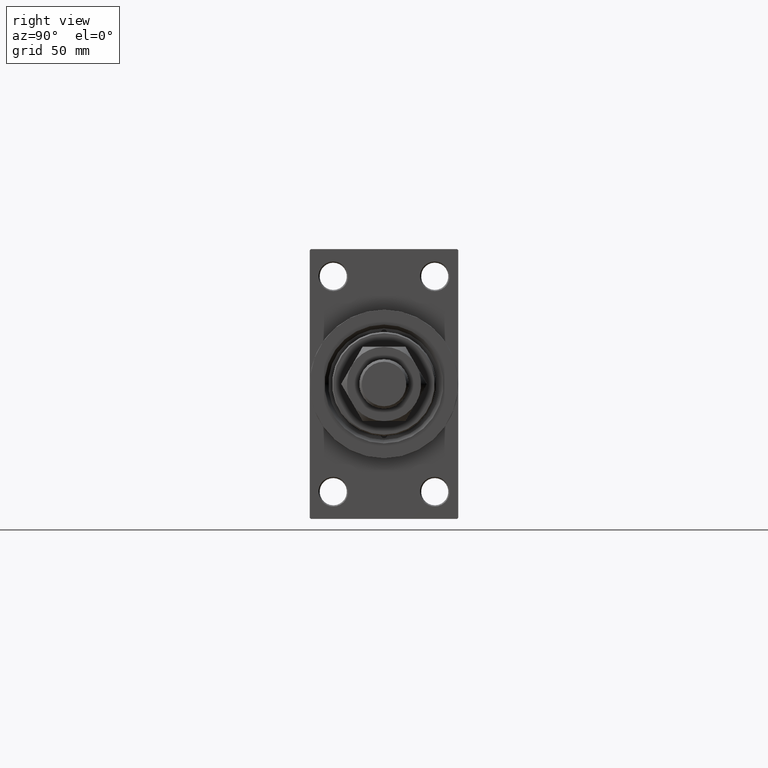
[diagram: clean part render]
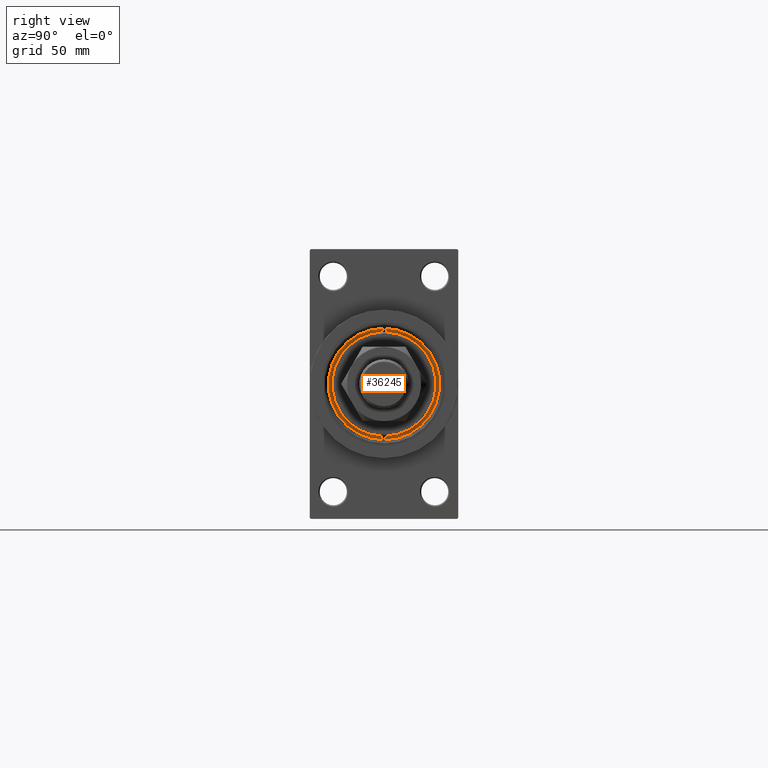
[diagram: same view with one face highlighted and labeled with its STEP entity id]
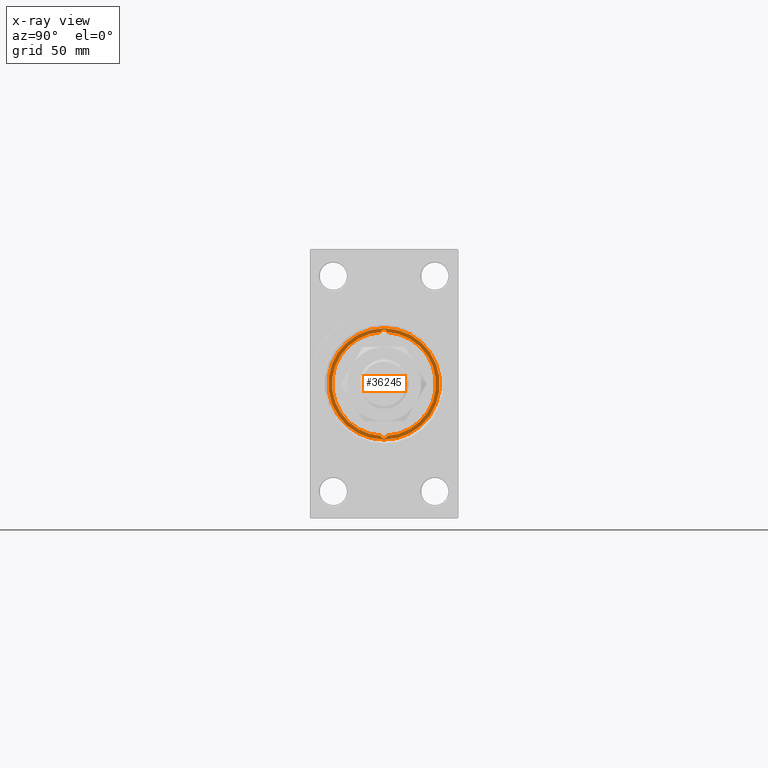
[diagram: x-ray of the same camera — body ghosted, the highlighted face saturated]
A machine part, right view. The second image highlights one B-rep face of the part: STEP entity #36245.
The next image is the same camera in x-ray: the body ghosted, the highlighted face saturated — about 0% of this face is hidden behind the body in this view.
In plain terms, the highlighted planar face has unit normal (1, -0, -0).
Its self-contained STEP definition (entity closure, byte-faithful):
#1746 = DIRECTION ( 'NONE',  ( -0.000000000000000000, -0.000000000000000000, 1.000000000000000000 ) ) ;
#2287 = AXIS2_PLACEMENT_3D ( 'NONE', #35805, #1746, #8982 ) ;
#2573 = CARTESIAN_POINT ( 'NONE',  ( 20.96385542168674831, -1.231570484631379969, 43.25999999999999801 ) ) ;
#5216 = DIRECTION ( 'NONE',  ( 1.000000000000000000, 0.000000000000000000, 0.000000000000000000 ) ) ;
#5654 = DIRECTION ( 'NONE',  ( 1.000000000000000000, 0.000000000000000000, 0.000000000000000000 ) ) ;
#5677 = CIRCLE ( 'NONE', #33448, 22.50000000000000355 ) ;
#6265 = DIRECTION ( 'NONE',  ( 1.000000000000000000, 0.000000000000000000, 0.000000000000000000 ) ) ;
#6508 = DIRECTION ( 'NONE',  ( -0.000000000000000000, -0.000000000000000000, 1.000000000000000000 ) ) ;
#6580 = ORIENTED_EDGE ( 'NONE', *, *, #42411, .F. ) ;
#7369 = ORIENTED_EDGE ( 'NONE', *, *, #19553, .F. ) ;
#7836 = EDGE_CURVE ( 'NONE', #39502, #22190, #44878, .T. ) ;
#8193 = ORIENTED_EDGE ( 'NONE', *, *, #45178, .F. ) ;
#8390 = EDGE_CURVE ( 'NONE', #11982, #39502, #30647, .T. ) ;
#8982 = DIRECTION ( 'NONE',  ( 1.000000000000000000, 0.000000000000000000, 0.000000000000000000 ) ) ;
#10928 = FACE_OUTER_BOUND ( 'NONE', #28715, .T. ) ;
#11383 = DIRECTION ( 'NONE',  ( 1.000000000000000000, 0.000000000000000000, 0.000000000000000000 ) ) ;
#11597 = CIRCLE ( 'NONE', #30644, 22.50000000000000355 ) ;
#11598 = AXIS2_PLACEMENT_3D ( 'NONE', #15118, #30262, #11383 ) ;
#11982 = VERTEX_POINT ( 'NONE', #29074 ) ;
#12490 = ORIENTED_EDGE ( 'NONE', *, *, #7836, .F. ) ;
#12574 = DIRECTION ( 'NONE',  ( 1.000000000000000000, 0.000000000000000000, 0.000000000000000000 ) ) ;
#13914 = FACE_BOUND ( 'NONE', #46798, .T. ) ;
#13973 = DIRECTION ( 'NONE',  ( 1.000000000000000000, 0.000000000000000000, 0.000000000000000000 ) ) ;
#14892 = AXIS2_PLACEMENT_3D ( 'NONE', #42634, #34446, #12574 ) ;
#15118 = CARTESIAN_POINT ( 'NONE',  ( 0.000000000000000000, 0.000000000000000000, 43.25999999999999801 ) ) ;
#15595 = VERTEX_POINT ( 'NONE', #38946 ) ;
#16413 = CARTESIAN_POINT ( 'NONE',  ( 0.000000000000000000, 0.000000000000000000, 43.25999999999999801 ) ) ;
#16843 = DIRECTION ( 'NONE',  ( 0.000000000000000000, 0.000000000000000000, 1.000000000000000000 ) ) ;
#17436 = DIRECTION ( 'NONE',  ( -0.000000000000000000, -0.000000000000000000, 1.000000000000000000 ) ) ;
#17457 = CARTESIAN_POINT ( 'NONE',  ( 20.75000000000000000, 0.000000000000000000, 43.25999999999999801 ) ) ;
#18631 = DIRECTION ( 'NONE',  ( 1.000000000000000000, 0.000000000000000000, -0.000000000000000000 ) ) ;
#18770 = AXIS2_PLACEMENT_3D ( 'NONE', #48004, #44530, #13973 ) ;
#19553 = EDGE_CURVE ( 'NONE', #22557, #11982, #45148, .T. ) ;
#20603 = VERTEX_POINT ( 'NONE', #23105 ) ;
#21158 = ORIENTED_EDGE ( 'NONE', *, *, #40788, .T. ) ;
#21170 = VERTEX_POINT ( 'NONE', #42911 ) ;
#21606 = PLANE ( 'NONE',  #44047 ) ;
#22190 = VERTEX_POINT ( 'NONE', #24085 ) ;
#22557 = VERTEX_POINT ( 'NONE', #25927 ) ;
#23105 = CARTESIAN_POINT ( 'NONE',  ( -22.50000000000000355, 0.000000000000000000, 43.25999999999999801 ) ) ;
#23499 = CIRCLE ( 'NONE', #18770, 1.249999999999997558 ) ;
#23705 = ORIENTED_EDGE ( 'NONE', *, *, #8390, .F. ) ;
#24085 = CARTESIAN_POINT ( 'NONE',  ( 22.00000000000000000, 0.000000000000000000, 43.25999999999999801 ) ) ;
#24422 = CIRCLE ( 'NONE', #14892, 21.00000000000000000 ) ;
#25611 = DIRECTION ( 'NONE',  ( 1.000000000000000000, 0.000000000000000000, 0.000000000000000000 ) ) ;
#25927 = CARTESIAN_POINT ( 'NONE',  ( -22.00000000000000000, 1.530808498934188612E-16, 43.25999999999999801 ) ) ;
#26312 = CARTESIAN_POINT ( 'NONE',  ( 0.000000000000000000, 0.000000000000000000, 43.25999999999999801 ) ) ;
#28013 = CARTESIAN_POINT ( 'NONE',  ( 0.000000000000000000, 0.000000000000000000, 43.25999999999999801 ) ) ;
#28093 = EDGE_CURVE ( 'NONE', #20603, #31829, #5677, .T. ) ;
#28314 = DIRECTION ( 'NONE',  ( 0.000000000000000000, 0.000000000000000000, 1.000000000000000000 ) ) ;
#28715 = EDGE_LOOP ( 'NONE', ( #39880, #21158 ) ) ;
#29074 = CARTESIAN_POINT ( 'NONE',  ( -20.96385542168674831, -1.231570484631387741, 43.25999999999999801 ) ) ;
#30262 = DIRECTION ( 'NONE',  ( 0.000000000000000000, 0.000000000000000000, 1.000000000000000000 ) ) ;
#30644 = AXIS2_PLACEMENT_3D ( 'NONE', #16413, #28314, #5216 ) ;
#30647 = CIRCLE ( 'NONE', #11598, 21.00000000000000000 ) ;
#31829 = VERTEX_POINT ( 'NONE', #34473 ) ;
#33448 = AXIS2_PLACEMENT_3D ( 'NONE', #28013, #16843, #5654 ) ;
#34446 = DIRECTION ( 'NONE',  ( 0.000000000000000000, 0.000000000000000000, 1.000000000000000000 ) ) ;
#34473 = CARTESIAN_POINT ( 'NONE',  ( 22.50000000000000355, 2.755455298081545172E-15, 43.25999999999999801 ) ) ;
#35422 = CIRCLE ( 'NONE', #38591, 1.249999999999997558 ) ;
#35805 = CARTESIAN_POINT ( 'NONE',  ( -20.75000000000000000, 0.000000000000000000, 43.25999999999999801 ) ) ;
#36245 = ADVANCED_FACE ( 'NONE', ( #13914, #10928 ), #21606, .T. ) ;
#38591 = AXIS2_PLACEMENT_3D ( 'NONE', #17457, #6508, #6265 ) ;
#38946 = CARTESIAN_POINT ( 'NONE',  ( -20.96385542168674831, 1.231570484631382412, 43.25999999999999801 ) ) ;
#39502 = VERTEX_POINT ( 'NONE', #2573 ) ;
#39880 = ORIENTED_EDGE ( 'NONE', *, *, #28093, .T. ) ;
#40542 = CARTESIAN_POINT ( 'NONE',  ( 20.75000000000000000, 0.000000000000000000, 43.25999999999999801 ) ) ;
#40788 = EDGE_CURVE ( 'NONE', #31829, #20603, #11597, .T. ) ;
#40912 = AXIS2_PLACEMENT_3D ( 'NONE', #40542, #17436, #25611 ) ;
#42411 = EDGE_CURVE ( 'NONE', #15595, #22557, #23499, .T. ) ;
#42460 = EDGE_CURVE ( 'NONE', #22190, #21170, #35422, .T. ) ;
#42634 = CARTESIAN_POINT ( 'NONE',  ( 0.000000000000000000, 0.000000000000000000, 43.25999999999999801 ) ) ;
#42911 = CARTESIAN_POINT ( 'NONE',  ( 20.96385542168674831, 1.231570484631382412, 43.25999999999999801 ) ) ;
#44047 = AXIS2_PLACEMENT_3D ( 'NONE', #26312, #48678, #18631 ) ;
#44530 = DIRECTION ( 'NONE',  ( -0.000000000000000000, -0.000000000000000000, 1.000000000000000000 ) ) ;
#44878 = CIRCLE ( 'NONE', #40912, 1.249999999999997558 ) ;
#45148 = CIRCLE ( 'NONE', #2287, 1.249999999999997558 ) ;
#45178 = EDGE_CURVE ( 'NONE', #21170, #15595, #24422, .T. ) ;
#46798 = EDGE_LOOP ( 'NONE', ( #6580, #8193, #47433, #12490, #23705, #7369 ) ) ;
#47433 = ORIENTED_EDGE ( 'NONE', *, *, #42460, .F. ) ;
#48004 = CARTESIAN_POINT ( 'NONE',  ( -20.75000000000000000, 0.000000000000000000, 43.25999999999999801 ) ) ;
#48678 = DIRECTION ( 'NONE',  ( 0.000000000000000000, 0.000000000000000000, 1.000000000000000000 ) ) ;